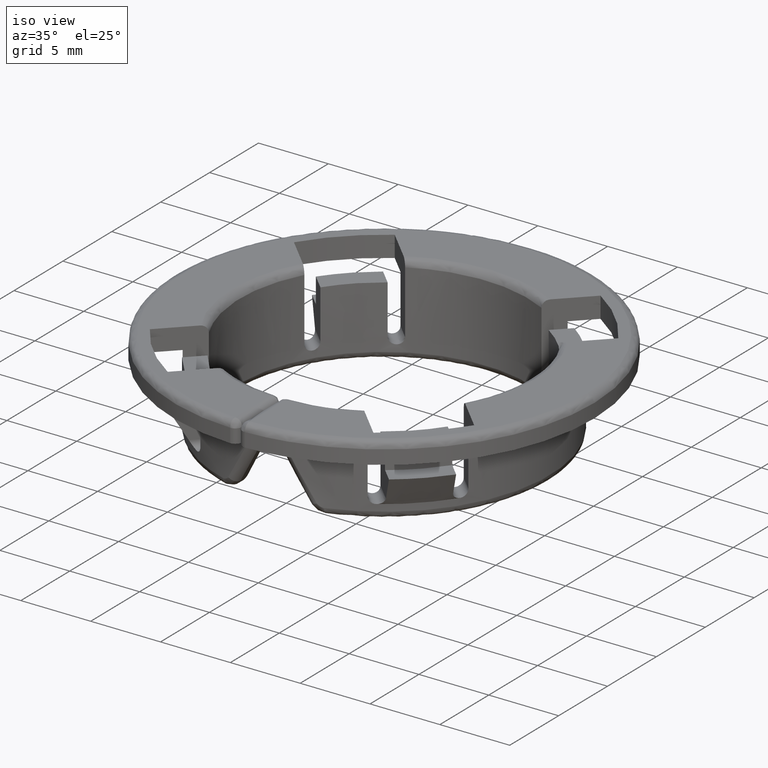
[diagram: clean part render]
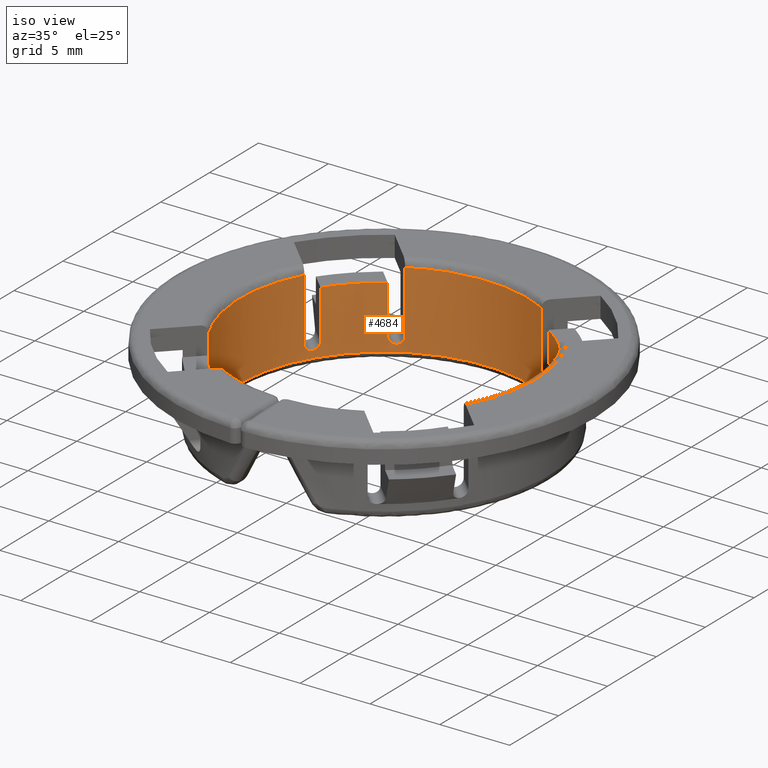
[diagram: same view with one face highlighted and labeled with its STEP entity id]
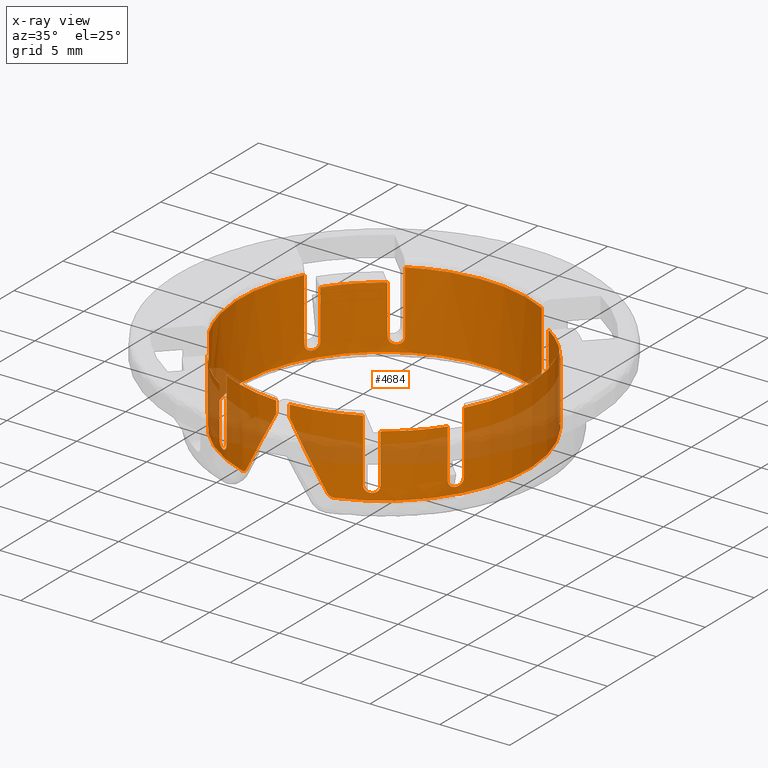
[diagram: x-ray of the same camera — body ghosted, the highlighted face saturated]
A machine part, iso view. The second image highlights one B-rep face of the part: STEP entity #4684.
The next image is the same camera in x-ray: the body ghosted, the highlighted face saturated — about 19% of this face is hidden behind the body in this view.
In plain terms, the highlighted face is a freeform B-spline surface patch.
Its self-contained STEP definition (entity closure, byte-faithful):
#64=CARTESIAN_POINT('',(4.883053290106590,-9.125693977225859,1.500000000000055));
#65=VERTEX_POINT('',#64);
#119=CARTESIAN_POINT('',(5.766402706444200,-8.594829831190110,1.499999999999946));
#120=VERTEX_POINT('',#119);
#126=CARTESIAN_POINT('',(4.883053290106590,-9.125693977225859,1.500000000000055));
#127=CARTESIAN_POINT('',(4.883053290106591,-9.125693977225859,1.466456825093460));
#128=CARTESIAN_POINT('',(4.886132504313243,-9.124048205405194,1.433514596777720));
#129=CARTESIAN_POINT('',(4.898151554858448,-9.117601540421788,1.368775764667828));
#130=CARTESIAN_POINT('',(4.907254160068183,-9.112712809909644,1.336631367448102));
#131=CARTESIAN_POINT('',(4.930741003449565,-9.100025895803759,1.275793097881955));
#132=CARTESIAN_POINT('',(4.945059169668516,-9.092263601023513,1.247003247082714));
#133=CARTESIAN_POINT('',(4.970297510748945,-9.078476444324007,1.206217292265463));
#134=CARTESIAN_POINT('',(4.979392597527713,-9.073492615548394,1.192965360570498));
#135=CARTESIAN_POINT('',(4.998498851073491,-9.062981193875556,1.167772523467935));
#136=CARTESIAN_POINT('',(5.008529282800129,-9.057443253071730,1.155786014511392));
#137=CARTESIAN_POINT('',(5.039997815844775,-9.039994328173640,1.121597442167305));
#138=CARTESIAN_POINT('',(5.062866936788113,-9.027218537981037,1.101100891460868));
#139=CARTESIAN_POINT('',(5.112011316941567,-8.999479787607287,1.065104796818212));
#140=CARTESIAN_POINT('',(5.137648066545639,-8.984877116942837,1.050051497744289));
#141=CARTESIAN_POINT('',(5.190914333071667,-8.954208666819989,1.025560140814321));
#142=CARTESIAN_POINT('',(5.218806389038011,-8.937988040079796,1.016078661369005));
#143=CARTESIAN_POINT('',(5.275206739815597,-8.904816909014896,1.003393578908698));
#144=CARTESIAN_POINT('',(5.303660318471935,-8.887902404440160,1.000129879449750));
#145=CARTESIAN_POINT('',(5.361075495140741,-8.853388699248921,0.999877648682865));
#146=CARTESIAN_POINT('',(5.389305944837537,-8.836228656173409,1.002899181831175));
#147=CARTESIAN_POINT('',(5.430829671541198,-8.810723746464657,1.011997007864005));
#148=CARTESIAN_POINT('',(5.444540864495107,-8.802257108824458,1.015795883286055));
#149=CARTESIAN_POINT('',(5.471699494651197,-8.785400393564411,1.024965005994182));
#150=CARTESIAN_POINT('',(5.485214027051084,-8.776967994495331,1.030371313974601));
#151=CARTESIAN_POINT('',(5.524597413138721,-8.752273065813341,1.048698132375599));
#152=CARTESIAN_POINT('',(5.549461865950282,-8.736518231888962,1.063719417366161));
#153=CARTESIAN_POINT('',(5.596464242695252,-8.706484123800959,1.099340603428289));
#154=CARTESIAN_POINT('',(5.618795123026382,-8.692077611748653,1.120215595332013));
#155=CARTESIAN_POINT('',(5.658900285941515,-8.666020966797751,1.166137584972987));
#156=CARTESIAN_POINT('',(5.676858454991598,-8.654255496527142,1.191241514199203));
#157=CARTESIAN_POINT('',(5.700631151171252,-8.638599105618292,1.232175407447735));
#158=CARTESIAN_POINT('',(5.708059785438370,-8.633690921725473,1.246456223580947));
#159=CARTESIAN_POINT('',(5.721549508430972,-8.624757194761882,1.275596531279998));
#160=CARTESIAN_POINT('',(5.727633532519601,-8.620716721925842,1.290476492087931));
#161=CARTESIAN_POINT('',(5.743951536812398,-8.609860130855582,1.336026774622397));
#162=CARTESIAN_POINT('',(5.752271685827570,-8.604296410234342,1.367598146180076));
#163=CARTESIAN_POINT('',(5.763575621780746,-8.596728582127028,1.433268035030917));
#164=CARTESIAN_POINT('',(5.766402706443721,-8.594829831190143,1.466463488594771));
#165=CARTESIAN_POINT('',(5.766402706444200,-8.594829831190110,1.499999999999946));
#166=B_SPLINE_CURVE_WITH_KNOTS('',3,(#126,#127,#128,#129,#130,#131,#132,#133,#134,#135,#136,#137,#138,#139,#140,#141,#142,#143,#144,#145,#146,#147,#148,#149,#150,#151,#152,#153,#154,#155,#156,#157,#158,#159,#160,#161,#162,#163,#164,#165),.UNSPECIFIED.,.F.,.U.,(4,2,2,2,2,2,2,2,2,2,2,2,2,2,2,2,2,2,2,4),(0.0,0.062500000000002,0.125000000000003,0.187500000000005,0.218750000000006,0.250000000000006,0.312500000000006,0.375000000000006,0.437500000000007,0.500000000000007,0.562500000000007,0.593750000000006,0.625000000000005,0.687500000000003,0.750000000000002,0.812500000000000,0.843750000000000,0.874999999999999,0.937500000000000,1.0),.UNSPECIFIED.);
#167=EDGE_CURVE('',#65,#120,#166,.T.);
#192=CARTESIAN_POINT('',(8.594829831190230,-5.766402706443970,1.499999999999946));
#193=VERTEX_POINT('',#192);
#245=CARTESIAN_POINT('',(9.125693977225859,-4.883053290106720,1.500000000000055));
#246=VERTEX_POINT('',#245);
#252=CARTESIAN_POINT('',(8.594829831190230,-5.766402706443970,1.499999999999946));
#253=CARTESIAN_POINT('',(8.594829831190001,-5.766402706444200,1.466461563871999));
#254=CARTESIAN_POINT('',(8.596727734932827,-5.763576725042938,1.433504727635055));
#255=CARTESIAN_POINT('',(8.604142959160903,-5.752501051920094,1.368705085261323));
#256=CARTESIAN_POINT('',(8.609758256425756,-5.744104346308679,1.336512552744379));
#257=CARTESIAN_POINT('',(8.624286691050246,-5.722267998437974,1.275440459893344));
#258=CARTESIAN_POINT('',(8.633148325303552,-5.708906046527832,1.246522052624599));
#259=CARTESIAN_POINT('',(8.653970897790524,-5.677292132255323,1.191892449707248));
#260=CARTESIAN_POINT('',(8.665974180733636,-5.658971706445651,1.166237169905556));
#261=CARTESIAN_POINT('',(8.691972797457444,-5.618957035229426,1.120383289036379));
#262=CARTESIAN_POINT('',(8.706078891270339,-5.597096309477162,1.099858515057701));
#263=CARTESIAN_POINT('',(8.736478383141666,-5.549526305864690,1.063729924931900));
#264=CARTESIAN_POINT('',(8.752302352226396,-5.524549787604725,1.048688197880573));
#265=CARTESIAN_POINT('',(8.784996210702253,-5.472411570638496,1.024401606198955));
#266=CARTESIAN_POINT('',(8.802033763162942,-5.444977179894101,1.015100810085251));
#267=CARTESIAN_POINT('',(8.836352177696107,-5.389105217858823,1.002851119575662));
#268=CARTESIAN_POINT('',(8.853595453070666,-5.360734013111934,0.999854423215790));
#269=CARTESIAN_POINT('',(8.888102069281656,-5.303325674706380,1.000156368141903));
#270=CARTESIAN_POINT('',(8.904941070354880,-5.274995480221750,1.003442645894904));
#271=CARTESIAN_POINT('',(8.937839289209046,-5.219059457711137,1.016020192203746));
#272=CARTESIAN_POINT('',(8.954046595872679,-5.191195128515154,1.025439404359235));
#273=CARTESIAN_POINT('',(8.984923430914352,-5.137568320128191,1.050079824965759));
#274=CARTESIAN_POINT('',(8.999484474277734,-5.112001409247668,1.065137748516824));
#275=CARTESIAN_POINT('',(9.026927880249451,-5.063383479027761,1.100697118691941));
#276=CARTESIAN_POINT('',(9.039922804332978,-5.040126362357014,1.121469063098240));
#277=CARTESIAN_POINT('',(9.063241311283143,-4.998073127743942,1.167134730903781));
#278=CARTESIAN_POINT('',(9.073663852394137,-4.979105536561574,1.192073093558374));
#279=CARTESIAN_POINT('',(9.092049899415910,-4.945452080143256,1.246280524891207));
#280=CARTESIAN_POINT('',(9.099987001366985,-4.930812665873445,1.275660026384982));
#281=CARTESIAN_POINT('',(9.112632240725478,-4.907403653285159,1.336192071227283));
#282=CARTESIAN_POINT('',(9.117463269828484,-4.898409111393684,1.367655032375390));
#283=CARTESIAN_POINT('',(9.124033364090316,-4.886160401606043,1.433103938330073));
#284=CARTESIAN_POINT('',(9.125693977226037,-4.883053290106721,1.466449628437052));
#285=CARTESIAN_POINT('',(9.125693977225859,-4.883053290106720,1.500000000000055));
#286=B_SPLINE_CURVE_WITH_KNOTS('',3,(#252,#253,#254,#255,#256,#257,#258,#259,#260,#261,#262,#263,#264,#265,#266,#267,#268,#269,#270,#271,#272,#273,#274,#275,#276,#277,#278,#279,#280,#281,#282,#283,#284,#285),.UNSPECIFIED.,.F.,.U.,(4,2,2,2,2,2,2,2,2,2,2,2,2,2,2,2,4),(0.0,0.062500000000000,0.125000000000000,0.187500000000000,0.250000000000000,0.312500000000000,0.375000000000000,0.437500000000000,0.500000000000000,0.562500000000000,0.625000000000000,0.687500000000000,0.750000000000000,0.812500000000000,0.875000000000000,0.937500000000000,1.0),.UNSPECIFIED.);
#287=EDGE_CURVE('',#193,#246,#286,.T.);
#312=CARTESIAN_POINT('',(9.125693977225890,4.883053290106949,1.500000000000055));
#313=VERTEX_POINT('',#312);
#367=CARTESIAN_POINT('',(8.594829831190118,5.766402706444190,1.499999999999946));
#368=VERTEX_POINT('',#367);
#374=CARTESIAN_POINT('',(9.125693977225890,4.883053290106949,1.500000000000055));
#375=CARTESIAN_POINT('',(9.125693977225891,4.883053290106950,1.466456825093476));
#376=CARTESIAN_POINT('',(9.124048205405329,4.886132504313387,1.433514596777711));
#377=CARTESIAN_POINT('',(9.117601540421937,4.898151554858584,1.368775764667850));
#378=CARTESIAN_POINT('',(9.112712809909780,4.907254160068336,1.336631367448066));
#379=CARTESIAN_POINT('',(9.100025895803897,4.930741003449714,1.275793097881947));
#380=CARTESIAN_POINT('',(9.092263601023662,4.945059169668658,1.247003247082718));
#381=CARTESIAN_POINT('',(9.078476444324155,4.970297510749078,1.206217292265483));
#382=CARTESIAN_POINT('',(9.073492615548524,4.979392597527870,1.192965360570475));
#383=CARTESIAN_POINT('',(9.062981193875690,4.998498851073641,1.167772523467921));
#384=CARTESIAN_POINT('',(9.057443253071869,5.008529282800276,1.155786014511383));
#385=CARTESIAN_POINT('',(9.039994328173783,5.039997815844917,1.121597442167308));
#386=CARTESIAN_POINT('',(9.027218537981167,5.062866936788272,1.101100891460853));
#387=CARTESIAN_POINT('',(8.999479787607420,5.112011316941715,1.065104796818208));
#388=CARTESIAN_POINT('',(8.984877116942974,5.137648066545784,1.050051497744287));
#389=CARTESIAN_POINT('',(8.954208666820136,5.190914333071802,1.025560140814325));
#390=CARTESIAN_POINT('',(8.937988040079940,5.218806389038154,1.016078661369005));
#391=CARTESIAN_POINT('',(8.904816909015040,5.275206739815736,1.003393578908699));
#392=CARTESIAN_POINT('',(8.887902404440306,5.303660318472073,1.000129879449750));
#393=CARTESIAN_POINT('',(8.853388699249059,5.361075495140875,0.999877648682864));
#394=CARTESIAN_POINT('',(8.836228656173550,5.389305944837673,1.002899181831173));
#395=CARTESIAN_POINT('',(8.810723746464802,5.430829671541336,1.011997007864004));
#396=CARTESIAN_POINT('',(8.802257108824604,5.444540864495245,1.015795883286053));
#397=CARTESIAN_POINT('',(8.785400393564553,5.471699494651334,1.024965005994180));
#398=CARTESIAN_POINT('',(8.776967994495477,5.485214027051221,1.030371313974598));
#399=CARTESIAN_POINT('',(8.752273065813492,5.524597413138861,1.048698132375596));
#400=CARTESIAN_POINT('',(8.736518231889107,5.549461865950421,1.063719417366159));
#401=CARTESIAN_POINT('',(8.706484123801102,5.596464242695389,1.099340603428285));
#402=CARTESIAN_POINT('',(8.692077611748795,5.618795123026520,1.120215595332010));
#403=CARTESIAN_POINT('',(8.666020966797895,5.658900285941656,1.166137584972984));
#404=CARTESIAN_POINT('',(8.654255496527284,5.676858454991739,1.191241514199199));
#405=CARTESIAN_POINT('',(8.638599105618436,5.700631151171392,1.232175407447731));
#406=CARTESIAN_POINT('',(8.633690921725613,5.708059785438509,1.246456223580941));
#407=CARTESIAN_POINT('',(8.624757194762024,5.721549508431111,1.275596531279992));
#408=CARTESIAN_POINT('',(8.620716721925984,5.727633532519740,1.290476492087925));
#409=CARTESIAN_POINT('',(8.609860130855726,5.743951536812538,1.336026774622391));
#410=CARTESIAN_POINT('',(8.604296410234483,5.752271685827711,1.367598146180071));
#411=CARTESIAN_POINT('',(8.596728582127172,5.763575621780888,1.433268035030910));
#412=CARTESIAN_POINT('',(8.594829831190280,5.766402706443859,1.466463488594771));
#413=CARTESIAN_POINT('',(8.594829831190118,5.766402706444190,1.499999999999946));
#414=B_SPLINE_CURVE_WITH_KNOTS('',3,(#374,#375,#376,#377,#378,#379,#380,#381,#382,#383,#384,#385,#386,#387,#388,#389,#390,#391,#392,#393,#394,#395,#396,#397,#398,#399,#400,#401,#402,#403,#404,#405,#406,#407,#408,#409,#410,#411,#412,#413),.UNSPECIFIED.,.F.,.U.,(4,2,2,2,2,2,2,2,2,2,2,2,2,2,2,2,2,2,2,4),(0.0,0.062500000000001,0.125000000000001,0.187500000000002,0.218750000000002,0.250000000000002,0.312500000000002,0.375000000000003,0.437500000000003,0.500000000000003,0.562500000000003,0.593750000000004,0.625000000000004,0.687500000000004,0.750000000000005,0.812500000000005,0.843750000000005,0.875000000000004,0.937500000000002,1.0),.UNSPECIFIED.);
#415=EDGE_CURVE('',#313,#368,#414,.T.);
#440=CARTESIAN_POINT('',(5.766402706443980,8.594829831190220,1.499999999999946));
#441=VERTEX_POINT('',#440);
#493=CARTESIAN_POINT('',(4.883053290106670,9.125693977226099,1.500000000000055));
#494=VERTEX_POINT('',#493);
#500=CARTESIAN_POINT('',(5.766402706443980,8.594829831190220,1.499999999999946));
#501=CARTESIAN_POINT('',(5.766402706444201,8.594829831190001,1.466461563871987));
#502=CARTESIAN_POINT('',(5.763576725042904,8.596727734933086,1.433504727635063));
#503=CARTESIAN_POINT('',(5.752501051920051,8.604142959161166,1.368705085261305));
#504=CARTESIAN_POINT('',(5.744104346308656,8.609758256426009,1.336512552744414));
#505=CARTESIAN_POINT('',(5.722267998437941,8.624286691050504,1.275440459893353));
#506=CARTESIAN_POINT('',(5.708906046527796,8.633148325303814,1.246522052624597));
#507=CARTESIAN_POINT('',(5.677292132255273,8.653970897790796,1.191892449707226));
#508=CARTESIAN_POINT('',(5.658971706445626,8.665974180733890,1.166237169905569));
#509=CARTESIAN_POINT('',(5.618957035229391,8.691972797457703,1.120383289036379));
#510=CARTESIAN_POINT('',(5.597096309477116,8.706078891270604,1.099858515057695));
#511=CARTESIAN_POINT('',(5.549526305864628,8.736478383141940,1.063729924931886));
#512=CARTESIAN_POINT('',(5.524549787604691,8.752302352226646,1.048688197880576));
#513=CARTESIAN_POINT('',(5.472411570638452,8.784996210702513,1.024401606198952));
#514=CARTESIAN_POINT('',(5.444977179894062,8.802033763163196,1.015100810085251));
#515=CARTESIAN_POINT('',(5.389105217858784,8.836352177696361,1.002851119575663));
#516=CARTESIAN_POINT('',(5.360734013111889,8.853595453070918,0.999854423215790));
#517=CARTESIAN_POINT('',(5.303325674706333,8.888102069281908,1.000156368141904));
#518=CARTESIAN_POINT('',(5.274995480221704,8.904941070355134,1.003442645894904));
#519=CARTESIAN_POINT('',(5.219059457711092,8.937839289209302,1.016020192203746));
#520=CARTESIAN_POINT('',(5.191195128515107,8.954046595872928,1.025439404359235));
#521=CARTESIAN_POINT('',(5.137568320128145,8.984923430914604,1.050079824965760));
#522=CARTESIAN_POINT('',(5.112001409247622,8.999484474277985,1.065137748516825));
#523=CARTESIAN_POINT('',(5.063383479027715,9.026927880249701,1.100697118691942));
#524=CARTESIAN_POINT('',(5.040126362356967,9.039922804333225,1.121469063098239));
#525=CARTESIAN_POINT('',(4.998073127743895,9.063241311283392,1.167134730903781));
#526=CARTESIAN_POINT('',(4.979105536561526,9.073663852394386,1.192073093558374));
#527=CARTESIAN_POINT('',(4.945452080143208,9.092049899416157,1.246280524891207));
#528=CARTESIAN_POINT('',(4.930812665873396,9.099987001367230,1.275660026384982));
#529=CARTESIAN_POINT('',(4.907403653285110,9.112632240725727,1.336192071227282));
#530=CARTESIAN_POINT('',(4.898409111393633,9.117463269828726,1.367655032375390));
#531=CARTESIAN_POINT('',(4.886160401605994,9.124033364090558,1.433103938330073));
#532=CARTESIAN_POINT('',(4.883053290106681,9.125693977226280,1.466449628437053));
#533=CARTESIAN_POINT('',(4.883053290106670,9.125693977226099,1.500000000000055));
#534=B_SPLINE_CURVE_WITH_KNOTS('',3,(#500,#501,#502,#503,#504,#505,#506,#507,#508,#509,#510,#511,#512,#513,#514,#515,#516,#517,#518,#519,#520,#521,#522,#523,#524,#525,#526,#527,#528,#529,#530,#531,#532,#533),.UNSPECIFIED.,.F.,.U.,(4,2,2,2,2,2,2,2,2,2,2,2,2,2,2,2,4),(0.0,0.062500000000000,0.125000000000000,0.187500000000000,0.250000000000000,0.312500000000000,0.375000000000000,0.437500000000000,0.500000000000000,0.562500000000000,0.625000000000000,0.687500000000000,0.750000000000000,0.812500000000000,0.875000000000000,0.937500000000000,1.0),.UNSPECIFIED.);
#535=EDGE_CURVE('',#441,#494,#534,.T.);
#558=CARTESIAN_POINT('',(-5.766402706444181,8.594829831190110,1.499999999999946));
#559=VERTEX_POINT('',#558);
#567=CARTESIAN_POINT('',(-4.883053290106879,9.125693977225991,1.500000000000055));
#568=VERTEX_POINT('',#567);
#569=CARTESIAN_POINT('',(-4.883053290106879,9.125693977225991,1.500000000000055));
#570=CARTESIAN_POINT('',(-4.883053290106881,9.125693977226003,1.466456825093449));
#571=CARTESIAN_POINT('',(-4.886132504313699,9.124048205405236,1.433514596777731));
#572=CARTESIAN_POINT('',(-4.898151554858907,9.117601540421831,1.368775764667818));
#573=CARTESIAN_POINT('',(-4.907254160068625,9.112712809909692,1.336631367448140));
#574=CARTESIAN_POINT('',(-4.930741003450011,9.100025895803796,1.275793097881973));
#575=CARTESIAN_POINT('',(-4.945059169668967,9.092263601023552,1.247003247082722));
#576=CARTESIAN_POINT('',(-4.970297510749403,9.078476444324036,1.206217292265459));
#577=CARTESIAN_POINT('',(-4.979392597528143,9.073492615548441,1.192965360570530));
#578=CARTESIAN_POINT('',(-4.998498851073921,9.062981193875601,1.167772523467960));
#579=CARTESIAN_POINT('',(-5.008529282800563,9.057443253071776,1.155786014511414));
#580=CARTESIAN_POINT('',(-5.039997815845215,9.039994328173680,1.121597442167317));
#581=CARTESIAN_POINT('',(-5.062866936788532,9.027218537981083,1.101100891460893));
#582=CARTESIAN_POINT('',(-5.112011316941990,8.999479787607328,1.065104796818229));
#583=CARTESIAN_POINT('',(-5.137648066546063,8.984877116942878,1.050051497744302));
#584=CARTESIAN_POINT('',(-5.190914333072096,8.954208666820026,1.025560140814328));
#585=CARTESIAN_POINT('',(-5.218806389038431,8.937988040079835,1.016078661369013));
#586=CARTESIAN_POINT('',(-5.275206739816015,8.904816909014931,1.003393578908701));
#587=CARTESIAN_POINT('',(-5.303660318472351,8.887902404440194,1.000129879449752));
#588=CARTESIAN_POINT('',(-5.361075495141153,8.853388699248955,0.999877648682863));
#589=CARTESIAN_POINT('',(-5.389305944837951,8.836228656173439,1.002899181831171));
#590=CARTESIAN_POINT('',(-5.430829671541610,8.810723746464690,1.011997007863999));
#591=CARTESIAN_POINT('',(-5.444540864495518,8.802257108824488,1.015795883286046));
#592=CARTESIAN_POINT('',(-5.471699494651604,8.785400393564444,1.024965005994171));
#593=CARTESIAN_POINT('',(-5.485214027051515,8.776967994495340,1.030371313974599));
#594=CARTESIAN_POINT('',(-5.524597413139142,8.752273065813363,1.048698132375593));
#595=CARTESIAN_POINT('',(-5.549461865950698,8.736518231888988,1.063719417366150));
#596=CARTESIAN_POINT('',(-5.596464242695653,8.706484123800983,1.099340603428264));
#597=CARTESIAN_POINT('',(-5.618795123026819,8.692077611748655,1.120215595332021));
#598=CARTESIAN_POINT('',(-5.658900285941932,8.666020966797763,1.166137584972975));
#599=CARTESIAN_POINT('',(-5.676858454992010,8.654255496527156,1.191241514199180));
#600=CARTESIAN_POINT('',(-5.700631151171653,8.638599105618310,1.232175407447691));
#601=CARTESIAN_POINT('',(-5.708059785438807,8.633690921725465,1.246456223580972));
#602=CARTESIAN_POINT('',(-5.721549508431399,8.624757194761880,1.275596531280008));
#603=CARTESIAN_POINT('',(-5.727633532520025,8.620716721925843,1.290476492087933));
#604=CARTESIAN_POINT('',(-5.743951536812815,8.609860130855591,1.336026774622373));
#605=CARTESIAN_POINT('',(-5.752271685827981,8.604296410234351,1.367598146180035));
#606=CARTESIAN_POINT('',(-5.763575621781160,8.596728582127041,1.433268035030836));
#607=CARTESIAN_POINT('',(-5.766402706443889,8.594829831190310,1.466463488594790));
#608=CARTESIAN_POINT('',(-5.766402706444181,8.594829831190110,1.499999999999946));
#609=B_SPLINE_CURVE_WITH_KNOTS('',3,(#569,#570,#571,#572,#573,#574,#575,#576,#577,#578,#579,#580,#581,#582,#583,#584,#585,#586,#587,#588,#589,#590,#591,#592,#593,#594,#595,#596,#597,#598,#599,#600,#601,#602,#603,#604,#605,#606,#607,#608),.UNSPECIFIED.,.F.,.U.,(4,2,2,2,2,2,2,2,2,2,2,2,2,2,2,2,2,2,2,4),(0.0,0.062500000000003,0.125000000000006,0.187500000000009,0.218750000000010,0.250000000000011,0.312500000000012,0.375000000000013,0.437500000000014,0.500000000000015,0.562500000000015,0.593750000000015,0.625000000000015,0.687500000000013,0.750000000000010,0.812500000000008,0.843750000000007,0.875000000000006,0.937500000000003,1.0),.UNSPECIFIED.);
#610=EDGE_CURVE('',#568,#559,#609,.T.);
#686=CARTESIAN_POINT('',(-9.125693977226019,4.883053290106700,1.500000000000055));
#687=VERTEX_POINT('',#686);
#695=CARTESIAN_POINT('',(-8.594829831190209,5.766402706443970,1.499999999999946));
#696=VERTEX_POINT('',#695);
#697=CARTESIAN_POINT('',(-8.594829831190209,5.766402706443970,1.499999999999946));
#698=CARTESIAN_POINT('',(-8.594829831189992,5.766402706444191,1.466461563872012));
#699=CARTESIAN_POINT('',(-8.596727734932845,5.763576725043194,1.433504727635048));
#700=CARTESIAN_POINT('',(-8.604142959160921,5.752501051920354,1.368705085261339));
#701=CARTESIAN_POINT('',(-8.609758256425778,5.744104346308928,1.336512552744353));
#702=CARTESIAN_POINT('',(-8.624286691050267,5.722267998438228,1.275440459893336));
#703=CARTESIAN_POINT('',(-8.633148325303571,5.708906046528090,1.246522052624599));
#704=CARTESIAN_POINT('',(-8.653970897790538,5.677292132255592,1.191892449707262));
#705=CARTESIAN_POINT('',(-8.665974180733661,5.658971706445897,1.166237169905541));
#706=CARTESIAN_POINT('',(-8.691972797457462,5.618957035229681,1.120383289036376));
#707=CARTESIAN_POINT('',(-8.706078891270357,5.597096309477421,1.099858515057702));
#708=CARTESIAN_POINT('',(-8.736478383141678,5.549526305864961,1.063729924931909));
#709=CARTESIAN_POINT('',(-8.752302352226421,5.524549787604972,1.048688197880566));
#710=CARTESIAN_POINT('',(-8.784996210702275,5.472411570638748,1.024401606198952));
#711=CARTESIAN_POINT('',(-8.802033763162966,5.444977179894347,1.015100810085246));
#712=CARTESIAN_POINT('',(-8.836352177696130,5.389105217859069,1.002851119575661));
#713=CARTESIAN_POINT('',(-8.853595453070687,5.360734013112178,0.999854423215790));
#714=CARTESIAN_POINT('',(-8.888102069281679,5.303325674706624,1.000156368141905));
#715=CARTESIAN_POINT('',(-8.904941070354905,5.274995480221993,1.003442645894906));
#716=CARTESIAN_POINT('',(-8.937839289209075,5.219059457711376,1.016020192203752));
#717=CARTESIAN_POINT('',(-8.954046595872686,5.191195128515422,1.025439404359230));
#718=CARTESIAN_POINT('',(-8.984923430914369,5.137568320128445,1.050079824965762));
#719=CARTESIAN_POINT('',(-8.999484474277757,5.112001409247912,1.065137748516832));
#720=CARTESIAN_POINT('',(-9.026927880249479,5.063383479027996,1.100697118691963));
#721=CARTESIAN_POINT('',(-9.039922804332987,5.040126362357287,1.121469063098226));
#722=CARTESIAN_POINT('',(-9.063241311283161,4.998073127744195,1.167134730903789));
#723=CARTESIAN_POINT('',(-9.073663852394164,4.979105536561819,1.192073093558394));
#724=CARTESIAN_POINT('',(-9.092049899415935,4.945452080143491,1.246280524891255));
#725=CARTESIAN_POINT('',(-9.099987001366992,4.930812665873712,1.275660026384965));
#726=CARTESIAN_POINT('',(-9.112632240725496,4.907403653285414,1.336192071227298));
#727=CARTESIAN_POINT('',(-9.117463269828502,4.898409111393936,1.367655032375425));
#728=CARTESIAN_POINT('',(-9.124033364090332,4.886160401606292,1.433103938330147));
#729=CARTESIAN_POINT('',(-9.125693977226202,4.883053290106710,1.466449628437033));
#730=CARTESIAN_POINT('',(-9.125693977226019,4.883053290106700,1.500000000000055));
#731=B_SPLINE_CURVE_WITH_KNOTS('',3,(#697,#698,#699,#700,#701,#702,#703,#704,#705,#706,#707,#708,#709,#710,#711,#712,#713,#714,#715,#716,#717,#718,#719,#720,#721,#722,#723,#724,#725,#726,#727,#728,#729,#730),.UNSPECIFIED.,.F.,.U.,(4,2,2,2,2,2,2,2,2,2,2,2,2,2,2,2,4),(0.0,0.062500000000000,0.125000000000000,0.187500000000000,0.250000000000000,0.312500000000000,0.375000000000000,0.437500000000000,0.500000000000000,0.562500000000000,0.625000000000000,0.687500000000000,0.750000000000000,0.812500000000000,0.875000000000000,0.937500000000000,1.0),.UNSPECIFIED.);
#732=EDGE_CURVE('',#696,#687,#731,.T.);
#808=CARTESIAN_POINT('',(-9.125693977225998,-4.883053290106460,1.500000000000055));
#809=VERTEX_POINT('',#808);
#863=CARTESIAN_POINT('',(-8.594829831190099,-5.766402706444190,1.499999999999946));
#864=VERTEX_POINT('',#863);
#870=CARTESIAN_POINT('',(-9.125693977225998,-4.883053290106460,1.500000000000055));
#871=CARTESIAN_POINT('',(-9.125693977225998,-4.883053290106461,1.466456825093448));
#872=CARTESIAN_POINT('',(-9.124048205405238,-4.886132504313284,1.433514596777729));
#873=CARTESIAN_POINT('',(-9.117601540421832,-4.898151554858492,1.368775764667814));
#874=CARTESIAN_POINT('',(-9.112712809909695,-4.907254160068211,1.336631367448136));
#875=CARTESIAN_POINT('',(-9.100025895803801,-4.930741003449602,1.275793097881967));
#876=CARTESIAN_POINT('',(-9.092263601023557,-4.945059169668558,1.247003247082716));
#877=CARTESIAN_POINT('',(-9.078476444324044,-4.970297510748996,1.206217292265451));
#878=CARTESIAN_POINT('',(-9.073492615548446,-4.979392597527734,1.192965360570524));
#879=CARTESIAN_POINT('',(-9.062981193875606,-4.998498851073515,1.167772523467953));
#880=CARTESIAN_POINT('',(-9.057443253071783,-5.008529282800156,1.155786014511407));
#881=CARTESIAN_POINT('',(-9.039994328173680,-5.039997815844812,1.121597442167309));
#882=CARTESIAN_POINT('',(-9.027218537981087,-5.062866936788129,1.101100891460886));
#883=CARTESIAN_POINT('',(-8.999479787607331,-5.112011316941590,1.065104796818223));
#884=CARTESIAN_POINT('',(-8.984877116942878,-5.137648066545665,1.050051497744296));
#885=CARTESIAN_POINT('',(-8.954208666820032,-5.190914333071700,1.025560140814323));
#886=CARTESIAN_POINT('',(-8.937988040079842,-5.218806389038035,1.016078661369009));
#887=CARTESIAN_POINT('',(-8.904816909014938,-5.275206739815624,1.003393578908699));
#888=CARTESIAN_POINT('',(-8.887902404440199,-5.303660318471962,1.000129879449750));
#889=CARTESIAN_POINT('',(-8.853388699248956,-5.361075495140766,0.999877648682863));
#890=CARTESIAN_POINT('',(-8.836228656173446,-5.389305944837563,1.002899181831173));
#891=CARTESIAN_POINT('',(-8.810723746464696,-5.430829671541224,1.011997007864004));
#892=CARTESIAN_POINT('',(-8.802257108824493,-5.444540864495134,1.015795883286053));
#893=CARTESIAN_POINT('',(-8.785400393564446,-5.471699494651224,1.024965005994180));
#894=CARTESIAN_POINT('',(-8.776967994495367,-5.485214027051111,1.030371313974597));
#895=CARTESIAN_POINT('',(-8.752273065813382,-5.524597413138750,1.048698132375596));
#896=CARTESIAN_POINT('',(-8.736518231888997,-5.549461865950309,1.063719417366159));
#897=CARTESIAN_POINT('',(-8.706484123800989,-5.596464242695279,1.099340603428286));
#898=CARTESIAN_POINT('',(-8.692077611748685,-5.618795123026409,1.120215595332011));
#899=CARTESIAN_POINT('',(-8.666020966797783,-5.658900285941541,1.166137584972985));
#900=CARTESIAN_POINT('',(-8.654255496527171,-5.676858454991626,1.191241514199200));
#901=CARTESIAN_POINT('',(-8.638599105618319,-5.700631151171279,1.232175407447732));
#902=CARTESIAN_POINT('',(-8.633690921725499,-5.708059785438397,1.246456223580943));
#903=CARTESIAN_POINT('',(-8.624757194761910,-5.721549508431001,1.275596531279995));
#904=CARTESIAN_POINT('',(-8.620716721925868,-5.727633532519627,1.290476492087927));
#905=CARTESIAN_POINT('',(-8.609860130855616,-5.743951536812427,1.336026774622394));
#906=CARTESIAN_POINT('',(-8.604296410234372,-5.752271685827599,1.367598146180075));
#907=CARTESIAN_POINT('',(-8.596728582127058,-5.763575621780774,1.433268035030915));
#908=CARTESIAN_POINT('',(-8.594829831190170,-5.766402706443750,1.466463488594770));
#909=CARTESIAN_POINT('',(-8.594829831190099,-5.766402706444190,1.499999999999946));
#910=B_SPLINE_CURVE_WITH_KNOTS('',3,(#870,#871,#872,#873,#874,#875,#876,#877,#878,#879,#880,#881,#882,#883,#884,#885,#886,#887,#888,#889,#890,#891,#892,#893,#894,#895,#896,#897,#898,#899,#900,#901,#902,#903,#904,#905,#906,#907,#908,#909),.UNSPECIFIED.,.F.,.U.,(4,2,2,2,2,2,2,2,2,2,2,2,2,2,2,2,2,2,2,4),(0.0,0.062500000000001,0.125000000000003,0.187500000000004,0.218750000000005,0.250000000000005,0.312500000000005,0.375000000000005,0.437500000000005,0.500000000000005,0.562500000000005,0.593750000000005,0.625000000000004,0.687500000000004,0.750000000000004,0.812500000000005,0.843750000000004,0.875000000000003,0.937500000000002,1.0),.UNSPECIFIED.);
#911=EDGE_CURVE('',#809,#864,#910,.T.);
#936=CARTESIAN_POINT('',(-5.766402706443961,-8.594829831190220,1.499999999999946));
#937=VERTEX_POINT('',#936);
#989=CARTESIAN_POINT('',(-4.883053290106810,-9.125693977225749,1.500000000000055));
#990=VERTEX_POINT('',#989);
#996=CARTESIAN_POINT('',(-5.766402706443961,-8.594829831190220,1.499999999999946));
#997=CARTESIAN_POINT('',(-5.766402706444191,-8.594829831189990,1.466461563872007));
#998=CARTESIAN_POINT('',(-5.763576725043015,-8.596727734932726,1.433504727635051));
#999=CARTESIAN_POINT('',(-5.752501051920171,-8.604142959160804,1.368705085261336));
#1000=CARTESIAN_POINT('',(-5.744104346308750,-8.609758256425659,1.336512552744362));
#1001=CARTESIAN_POINT('',(-5.722267998438047,-8.624286691050152,1.275440459893341));
#1002=CARTESIAN_POINT('',(-5.708906046527910,-8.633148325303450,1.246522052624602));
#1003=CARTESIAN_POINT('',(-5.677292132255411,-8.653970897790421,1.191892449707263));
#1004=CARTESIAN_POINT('',(-5.658971706445721,-8.665974180733542,1.166237169905549));
#1005=CARTESIAN_POINT('',(-5.618957035229506,-8.691972797457343,1.120383289036381));
#1006=CARTESIAN_POINT('',(-5.597096309477244,-8.706078891270236,1.099858515057705));
#1007=CARTESIAN_POINT('',(-5.549526305864781,-8.736478383141558,1.063729924931910));
#1008=CARTESIAN_POINT('',(-5.524549787604802,-8.752302352226296,1.048688197880572));
#1009=CARTESIAN_POINT('',(-5.472411570638577,-8.784996210702150,1.024401606198956));
#1010=CARTESIAN_POINT('',(-5.444977179894178,-8.802033763162839,1.015100810085251));
#1011=CARTESIAN_POINT('',(-5.389105217858903,-8.836352177696000,1.002851119575663));
#1012=CARTESIAN_POINT('',(-5.360734013112012,-8.853595453070557,0.999854423215790));
#1013=CARTESIAN_POINT('',(-5.303325674706458,-8.888102069281549,1.000156368141904));
#1014=CARTESIAN_POINT('',(-5.274995480221830,-8.904941070354775,1.003442645894904));
#1015=CARTESIAN_POINT('',(-5.219059457711217,-8.937839289208947,1.016020192203746));
#1016=CARTESIAN_POINT('',(-5.191195128515233,-8.954046595872574,1.025439404359234));
#1017=CARTESIAN_POINT('',(-5.137568320128271,-8.984923430914245,1.050079824965759));
#1018=CARTESIAN_POINT('',(-5.112001409247748,-8.999484474277629,1.065137748516824));
#1019=CARTESIAN_POINT('',(-5.063383479027843,-9.026927880249344,1.100697118691941));
#1020=CARTESIAN_POINT('',(-5.040126362357095,-9.039922804332869,1.121469063098240));
#1021=CARTESIAN_POINT('',(-4.998073127744021,-9.063241311283033,1.167134730903782));
#1022=CARTESIAN_POINT('',(-4.979105536561653,-9.073663852394027,1.192073093558374));
#1023=CARTESIAN_POINT('',(-4.945452080143340,-9.092049899415800,1.246280524891207));
#1024=CARTESIAN_POINT('',(-4.930812665873527,-9.099987001366877,1.275660026384983));
#1025=CARTESIAN_POINT('',(-4.907403653285241,-9.112632240725372,1.336192071227283));
#1026=CARTESIAN_POINT('',(-4.898409111393764,-9.117463269828372,1.367655032375390));
#1027=CARTESIAN_POINT('',(-4.886160401606124,-9.124033364090206,1.433103938330072));
#1028=CARTESIAN_POINT('',(-4.883053290106812,-9.125693977225920,1.466449628437053));
#1029=CARTESIAN_POINT('',(-4.883053290106810,-9.125693977225749,1.500000000000055));
#1030=B_SPLINE_CURVE_WITH_KNOTS('',3,(#996,#997,#998,#999,#1000,#1001,#1002,#1003,#1004,#1005,#1006,#1007,#1008,#1009,#1010,#1011,#1012,#1013,#1014,#1015,#1016,#1017,#1018,#1019,#1020,#1021,#1022,#1023,#1024,#1025,#1026,#1027,#1028,#1029),.UNSPECIFIED.,.F.,.U.,(4,2,2,2,2,2,2,2,2,2,2,2,2,2,2,2,4),(0.0,0.062500000000000,0.125000000000000,0.187500000000000,0.250000000000000,0.312500000000000,0.375000000000000,0.437500000000000,0.500000000000000,0.562500000000000,0.625000000000000,0.687500000000000,0.750000000000000,0.812500000000000,0.875000000000000,0.937500000000000,1.0),.UNSPECIFIED.);
#1031=EDGE_CURVE('',#937,#990,#1030,.T.);
#1041=CARTESIAN_POINT('',(-9.125693977226019,4.883053290106700,5.999999999999890));
#1042=VERTEX_POINT('',#1041);
#1043=CARTESIAN_POINT('',(-9.125693977226019,4.883053290106700,5.999999999999890));
#1044=CARTESIAN_POINT('',(-9.125693977226019,4.883053290106700,1.500000000000055));
#1045=QUASI_UNIFORM_CURVE('',1,(#1043,#1044),.UNSPECIFIED.,.F.,.U.);
#1046=EDGE_CURVE('',#1042,#687,#1045,.T.);
#1169=CARTESIAN_POINT('',(-4.883053290106879,9.125693977225991,5.999999999999890));
#1170=VERTEX_POINT('',#1169);
#1171=CARTESIAN_POINT('',(-4.883053290106879,9.125693977225991,5.999999999999890));
#1172=CARTESIAN_POINT('',(-4.883053290106879,9.125693977225991,1.500000000000055));
#1173=QUASI_UNIFORM_CURVE('',1,(#1171,#1172),.UNSPECIFIED.,.F.,.U.);
#1174=EDGE_CURVE('',#1170,#568,#1173,.T.);
#1224=CARTESIAN_POINT('',(-5.766402706444181,8.594829831190110,4.999999999999890));
#1225=VERTEX_POINT('',#1224);
#1246=CARTESIAN_POINT('',(-8.594829831190209,5.766402706443970,4.999999999999890));
#1247=VERTEX_POINT('',#1246);
#1253=CARTESIAN_POINT('',(-5.766402706444184,8.594829831190122,4.999999999999890));
#1254=CARTESIAN_POINT('',(-7.459143894459192,7.459143894459034,4.999999999999890));
#1255=CARTESIAN_POINT('',(-8.594829831190213,5.766402706443980,4.999999999999890));
#1263=(BOUNDED_CURVE()B_SPLINE_CURVE(2,(#1253,#1254,#1255),.UNSPECIFIED.,.F.,.U.)CURVE()GEOMETRIC_REPRESENTATION_ITEM()QUASI_UNIFORM_CURVE()RATIONAL_B_SPLINE_CURVE((1.0,0.981152165561156,1.0))REPRESENTATION_ITEM(''));
#1264=EDGE_CURVE('',#1225,#1247,#1263,.T.);
#1282=CARTESIAN_POINT('',(-9.125693977225998,-4.883053290106460,5.999999999999890));
#1283=VERTEX_POINT('',#1282);
#1284=CARTESIAN_POINT('',(-9.125693977225998,-4.883053290106460,5.999999999999890));
#1285=CARTESIAN_POINT('',(-9.125693977225998,-4.883053290106460,1.500000000000055));
#1286=QUASI_UNIFORM_CURVE('',1,(#1284,#1285),.UNSPECIFIED.,.F.,.U.);
#1287=EDGE_CURVE('',#1283,#809,#1286,.T.);
#1394=CARTESIAN_POINT('',(-4.883053290106810,-9.125693977225749,5.999999999999890));
#1395=VERTEX_POINT('',#1394);
#1396=CARTESIAN_POINT('',(-4.883053290106810,-9.125693977225749,5.999999999999890));
#1397=CARTESIAN_POINT('',(-4.883053290106810,-9.125693977225749,1.500000000000055));
#1398=QUASI_UNIFORM_CURVE('',1,(#1396,#1397),.UNSPECIFIED.,.F.,.U.);
#1399=EDGE_CURVE('',#1395,#990,#1398,.T.);
#1457=CARTESIAN_POINT('',(-8.594829831190099,-5.766402706444190,4.999999999999890));
#1458=VERTEX_POINT('',#1457);
#1479=CARTESIAN_POINT('',(-5.766402706443961,-8.594829831190220,4.999999999999890));
#1480=VERTEX_POINT('',#1479);
#1486=CARTESIAN_POINT('',(-8.594829831190099,-5.766402706444190,4.999999999999890));
#1487=CARTESIAN_POINT('',(-7.459143894458873,-7.459143894459061,4.999999999999890));
#1488=CARTESIAN_POINT('',(-5.766402706443961,-8.594829831190220,4.999999999999890));
#1496=(BOUNDED_CURVE()B_SPLINE_CURVE(2,(#1486,#1487,#1488),.UNSPECIFIED.,.F.,.U.)CURVE()GEOMETRIC_REPRESENTATION_ITEM()QUASI_UNIFORM_CURVE()RATIONAL_B_SPLINE_CURVE((1.0,0.981152165561157,1.0))REPRESENTATION_ITEM(''));
#1497=EDGE_CURVE('',#1458,#1480,#1496,.T.);
#1515=CARTESIAN_POINT('',(4.883053290106590,-9.125693977225859,5.999999999999890));
#1516=VERTEX_POINT('',#1515);
#1517=CARTESIAN_POINT('',(4.883053290106590,-9.125693977225859,5.999999999999890));
#1518=CARTESIAN_POINT('',(4.883053290106590,-9.125693977225859,1.500000000000055));
#1519=QUASI_UNIFORM_CURVE('',1,(#1517,#1518),.UNSPECIFIED.,.F.,.U.);
#1520=EDGE_CURVE('',#1516,#65,#1519,.T.);
#1627=CARTESIAN_POINT('',(9.125693977225859,-4.883053290106720,5.999999999999890));
#1628=VERTEX_POINT('',#1627);
#1629=CARTESIAN_POINT('',(9.125693977225859,-4.883053290106720,5.999999999999890));
#1630=CARTESIAN_POINT('',(9.125693977225859,-4.883053290106720,1.500000000000055));
#1631=QUASI_UNIFORM_CURVE('',1,(#1629,#1630),.UNSPECIFIED.,.F.,.U.);
#1632=EDGE_CURVE('',#1628,#246,#1631,.T.);
#1690=CARTESIAN_POINT('',(5.766402706444200,-8.594829831190110,4.999999999999890));
#1691=VERTEX_POINT('',#1690);
#1712=CARTESIAN_POINT('',(8.594829831190230,-5.766402706443970,4.999999999999890));
#1713=VERTEX_POINT('',#1712);
#1719=CARTESIAN_POINT('',(5.766402706444200,-8.594829831190110,4.999999999999890));
#1720=CARTESIAN_POINT('',(7.459143894459060,-7.459143894458872,4.999999999999890));
#1721=CARTESIAN_POINT('',(8.594829831190230,-5.766402706443970,4.999999999999890));
#1729=(BOUNDED_CURVE()B_SPLINE_CURVE(2,(#1719,#1720,#1721),.UNSPECIFIED.,.F.,.U.)CURVE()GEOMETRIC_REPRESENTATION_ITEM()QUASI_UNIFORM_CURVE()RATIONAL_B_SPLINE_CURVE((1.0,0.981152165561157,1.0))REPRESENTATION_ITEM(''));
#1730=EDGE_CURVE('',#1691,#1713,#1729,.T.);
#1748=CARTESIAN_POINT('',(9.125693977225890,4.883053290106949,5.999999999999890));
#1749=VERTEX_POINT('',#1748);
#1750=CARTESIAN_POINT('',(9.125693977225890,4.883053290106949,5.999999999999890));
#1751=CARTESIAN_POINT('',(9.125693977225890,4.883053290106949,1.500000000000055));
#1752=QUASI_UNIFORM_CURVE('',1,(#1750,#1751),.UNSPECIFIED.,.F.,.U.);
#1753=EDGE_CURVE('',#1749,#313,#1752,.T.);
#1860=CARTESIAN_POINT('',(4.883053290106670,9.125693977226099,5.999999999999890));
#1861=VERTEX_POINT('',#1860);
#1862=CARTESIAN_POINT('',(4.883053290106670,9.125693977226099,5.999999999999890));
#1863=CARTESIAN_POINT('',(4.883053290106670,9.125693977226099,1.500000000000055));
#1864=QUASI_UNIFORM_CURVE('',1,(#1862,#1863),.UNSPECIFIED.,.F.,.U.);
#1865=EDGE_CURVE('',#1861,#494,#1864,.T.);
#1923=CARTESIAN_POINT('',(8.594829831190118,5.766402706444190,4.999999999999890));
#1924=VERTEX_POINT('',#1923);
#1945=CARTESIAN_POINT('',(5.766402706443980,8.594829831190220,4.999999999999890));
#1946=VERTEX_POINT('',#1945);
#1952=CARTESIAN_POINT('',(8.594829831190118,5.766402706444190,4.999999999999890));
#1953=CARTESIAN_POINT('',(7.459143894459028,7.459143894459201,4.999999999999890));
#1954=CARTESIAN_POINT('',(5.766402706443980,8.594829831190220,4.999999999999890));
#1962=(BOUNDED_CURVE()B_SPLINE_CURVE(2,(#1952,#1953,#1954),.UNSPECIFIED.,.F.,.U.)CURVE()GEOMETRIC_REPRESENTATION_ITEM()QUASI_UNIFORM_CURVE()RATIONAL_B_SPLINE_CURVE((1.0,0.981152165561156,1.0))REPRESENTATION_ITEM(''));
#1963=EDGE_CURVE('',#1924,#1946,#1962,.T.);
#1973=CARTESIAN_POINT('',(5.766402706444200,-8.594829831190110,1.499999999999946));
#1974=CARTESIAN_POINT('',(5.766402706444200,-8.594829831190110,4.999999999999890));
#1975=QUASI_UNIFORM_CURVE('',1,(#1973,#1974),.UNSPECIFIED.,.F.,.U.);
#1976=EDGE_CURVE('',#120,#1691,#1975,.T.);
#2019=CARTESIAN_POINT('',(-5.766402706443961,-8.594829831190220,1.499999999999946));
#2020=CARTESIAN_POINT('',(-5.766402706443961,-8.594829831190220,4.999999999999890));
#2021=QUASI_UNIFORM_CURVE('',1,(#2019,#2020),.UNSPECIFIED.,.F.,.U.);
#2022=EDGE_CURVE('',#937,#1480,#2021,.T.);
#2045=CARTESIAN_POINT('',(-8.594829831190099,-5.766402706444190,1.499999999999946));
#2046=CARTESIAN_POINT('',(-8.594829831190099,-5.766402706444190,4.999999999999890));
#2047=QUASI_UNIFORM_CURVE('',1,(#2045,#2046),.UNSPECIFIED.,.F.,.U.);
#2048=EDGE_CURVE('',#864,#1458,#2047,.T.);
#2091=CARTESIAN_POINT('',(-8.594829831190209,5.766402706443970,1.499999999999946));
#2092=CARTESIAN_POINT('',(-8.594829831190209,5.766402706443970,4.999999999999890));
#2093=QUASI_UNIFORM_CURVE('',1,(#2091,#2092),.UNSPECIFIED.,.F.,.U.);
#2094=EDGE_CURVE('',#696,#1247,#2093,.T.);
#2117=CARTESIAN_POINT('',(-5.766402706444181,8.594829831190110,1.499999999999946));
#2118=CARTESIAN_POINT('',(-5.766402706444181,8.594829831190110,4.999999999999890));
#2119=QUASI_UNIFORM_CURVE('',1,(#2117,#2118),.UNSPECIFIED.,.F.,.U.);
#2120=EDGE_CURVE('',#559,#1225,#2119,.T.);
#2163=CARTESIAN_POINT('',(5.766402706443980,8.594829831190220,1.499999999999946));
#2164=CARTESIAN_POINT('',(5.766402706443980,8.594829831190220,4.999999999999890));
#2165=QUASI_UNIFORM_CURVE('',1,(#2163,#2164),.UNSPECIFIED.,.F.,.U.);
#2166=EDGE_CURVE('',#441,#1946,#2165,.T.);
#2189=CARTESIAN_POINT('',(8.594829831190118,5.766402706444190,1.499999999999946));
#2190=CARTESIAN_POINT('',(8.594829831190118,5.766402706444190,4.999999999999890));
#2191=QUASI_UNIFORM_CURVE('',1,(#2189,#2190),.UNSPECIFIED.,.F.,.U.);
#2192=EDGE_CURVE('',#368,#1924,#2191,.T.);
#2235=CARTESIAN_POINT('',(8.594829831190230,-5.766402706443970,1.499999999999946));
#2236=CARTESIAN_POINT('',(8.594829831190230,-5.766402706443970,4.999999999999890));
#2237=QUASI_UNIFORM_CURVE('',1,(#2235,#2236),.UNSPECIFIED.,.F.,.U.);
#2238=EDGE_CURVE('',#193,#1713,#2237,.T.);
#2476=CARTESIAN_POINT('',(-2.891407396508065,-9.937920469968319,0.749999999996298));
#2477=VERTEX_POINT('',#2476);
#2491=CARTESIAN_POINT('',(-0.476958525345822,-10.339004331418741,5.133974596215120));
#2492=VERTEX_POINT('',#2491);
#2493=CARTESIAN_POINT('',(-0.476958525345822,-10.339004331418741,5.133974596215120));
#2494=CARTESIAN_POINT('',(-1.708062234682786,-10.282211105404903,2.898629109505219));
#2495=CARTESIAN_POINT('',(-2.891407396508065,-9.937920469968319,0.749999999996298));
#2503=(BOUNDED_CURVE()B_SPLINE_CURVE(2,(#2493,#2494,#2495),.UNSPECIFIED.,.F.,.U.)CURVE()GEOMETRIC_REPRESENTATION_ITEM()QUASI_UNIFORM_CURVE()RATIONAL_B_SPLINE_CURVE((1.0,0.992985231495473,1.0))REPRESENTATION_ITEM(''));
#2504=EDGE_CURVE('',#2492,#2477,#2503,.T.);
#2608=CARTESIAN_POINT('',(-3.304465596006900,-9.808313164087069,0.499999999999945));
#2609=VERTEX_POINT('',#2608);
#2625=CARTESIAN_POINT('',(-2.891407396508065,-9.937920469968319,0.749999999996298));
#2626=CARTESIAN_POINT('',(-2.912474756473169,-9.931790986379472,0.711747472888474));
#2627=CARTESIAN_POINT('',(-2.937831020053239,-9.924343678725951,0.677215510130166));
#2628=CARTESIAN_POINT('',(-2.982089611148593,-9.911098763005125,0.630855053608009));
#2629=CARTESIAN_POINT('',(-2.998027529524547,-9.906292550692678,0.616224149006197));
#2630=CARTESIAN_POINT('',(-3.031230988863205,-9.896183095509686,0.589590951315182));
#2631=CARTESIAN_POINT('',(-3.065808356671021,-9.885564099476856,0.565468266669795));
#2632=CARTESIAN_POINT('',(-3.103050413774079,-9.873904391926589,0.546241394556249));
#2633=CARTESIAN_POINT('',(-3.141651706469544,-9.861690238826586,0.529523833089556));
#2634=CARTESIAN_POINT('',(-3.161629971342347,-9.855305143881159,0.522452226488373));
#2635=CARTESIAN_POINT('',(-3.221752768923313,-9.835882437013265,0.505659556022376));
#2636=CARTESIAN_POINT('',(-3.262681261180958,-9.822390497729916,0.500000000000000));
#2637=CARTESIAN_POINT('',(-3.304465596006900,-9.808313164087069,0.499999999999945));
#2638=B_SPLINE_CURVE_WITH_KNOTS('',3,(#2625,#2626,#2627,#2628,#2629,#2630,#2631,#2632,#2633,#2634,#2635,#2636,#2637),.UNSPECIFIED.,.F.,.U.,(4,2,2,1,2,2,4),(0.0,0.250000000000001,0.375000000000001,0.500000000000000,0.625000000000000,0.750000000000000,1.0),.UNSPECIFIED.);
#2639=EDGE_CURVE('',#2477,#2609,#2638,.T.);
#2721=CARTESIAN_POINT('',(3.304465596006925,-9.808313164087060,0.499999999999945));
#2722=VERTEX_POINT('',#2721);
#2756=CARTESIAN_POINT('',(2.891407396506045,-9.937920469968908,0.750000000000000));
#2757=VERTEX_POINT('',#2756);
#2771=CARTESIAN_POINT('',(3.304465596006925,-9.808313164087060,0.499999999999945));
#2772=CARTESIAN_POINT('',(3.262728838733036,-9.822374468634870,0.500000000000000));
#2773=CARTESIAN_POINT('',(3.221474556483125,-9.835973093903306,0.505720310193190));
#2774=CARTESIAN_POINT('',(3.141518405268425,-9.861801414113835,0.528086538108796));
#2775=CARTESIAN_POINT('',(3.102282300727823,-9.874196717855917,0.545062435152411));
#2776=CARTESIAN_POINT('',(3.048366028270952,-9.890921020398734,0.577630670453657));
#2777=CARTESIAN_POINT('',(3.031081873733760,-9.896228727989326,0.589701355745420));
#2778=CARTESIAN_POINT('',(2.997922730606557,-9.906324225628348,0.616317485149709));
#2779=CARTESIAN_POINT('',(2.982005130094435,-9.911124164036762,0.630936816640030));
#2780=CARTESIAN_POINT('',(2.937778936419219,-9.924359026364900,0.677283577972370));
#2781=CARTESIAN_POINT('',(2.912450029023420,-9.931798180754930,0.711792371130522));
#2782=CARTESIAN_POINT('',(2.891407396506055,-9.937920469968908,0.750000000000000));
#2783=B_SPLINE_CURVE_WITH_KNOTS('',3,(#2771,#2772,#2773,#2774,#2775,#2776,#2777,#2778,#2779,#2780,#2781,#2782),.UNSPECIFIED.,.F.,.U.,(4,2,2,2,2,4),(0.0,0.250000000000000,0.500000000000000,0.624999999999999,0.749999999999998,1.0),.UNSPECIFIED.);
#2784=EDGE_CURVE('',#2722,#2757,#2783,.T.);
#3004=CARTESIAN_POINT('',(0.476958525345502,-10.339004331418741,5.133974596215790));
#3005=VERTEX_POINT('',#3004);
#3006=CARTESIAN_POINT('',(2.891407396506045,-9.937920469968908,0.750000000000000));
#3007=CARTESIAN_POINT('',(1.708062234682578,-10.282211105404718,2.898629109505779));
#3008=CARTESIAN_POINT('',(0.476958525345502,-10.339004331418741,5.133974596215790));
#3016=(BOUNDED_CURVE()B_SPLINE_CURVE(2,(#3006,#3007,#3008),.UNSPECIFIED.,.F.,.U.)CURVE()GEOMETRIC_REPRESENTATION_ITEM()QUASI_UNIFORM_CURVE()RATIONAL_B_SPLINE_CURVE((1.0,0.992985231495503,1.0))REPRESENTATION_ITEM(''));
#3017=EDGE_CURVE('',#2757,#3005,#3016,.T.);
#3088=CARTESIAN_POINT('',(-0.476958525345822,-10.339004331418741,5.999999999999890));
#3089=VERTEX_POINT('',#3088);
#3207=CARTESIAN_POINT('',(0.476958525345502,-10.339004331418741,5.999999999999890));
#3208=VERTEX_POINT('',#3207);
#3256=CARTESIAN_POINT('',(0.476958525345502,-10.339004331418741,5.999999999999890));
#3257=CARTESIAN_POINT('',(2.817330419898573,-10.231038390811385,5.999999999999890));
#3258=CARTESIAN_POINT('',(4.883053290106596,-9.125693977225872,5.999999999999890));
#3266=(BOUNDED_CURVE()B_SPLINE_CURVE(2,(#3256,#3257,#3258),.UNSPECIFIED.,.F.,.U.)CURVE()GEOMETRIC_REPRESENTATION_ITEM()QUASI_UNIFORM_CURVE()RATIONAL_B_SPLINE_CURVE((1.0,0.975324162347202,1.0))REPRESENTATION_ITEM(''));
#3267=EDGE_CURVE('',#3208,#1516,#3266,.T.);
#3330=CARTESIAN_POINT('',(-3.304465596006895,-9.808313164087085,0.499999999999945));
#3331=CARTESIAN_POINT('',(-11.635853259693974,-7.001430528808561,0.499999999999945));
#3332=CARTESIAN_POINT('',(-10.213680562077091,1.674284735595783,0.499999999999945));
#3333=CARTESIAN_POINT('',(-8.791507864460208,10.350000000000140,0.499999999999945));
#3334=CARTESIAN_POINT('',(-1.199069E-028,10.350000000000140,0.499999999999945));
#3335=CARTESIAN_POINT('',(8.791507864460172,10.350000000000140,0.499999999999945));
#3336=CARTESIAN_POINT('',(10.213680562077091,1.674284735595823,0.499999999999945));
#3337=CARTESIAN_POINT('',(11.635853259694001,-7.001430528808513,0.499999999999945));
#3338=CARTESIAN_POINT('',(3.304465596006934,-9.808313164087071,0.499999999999945));
#3346=(BOUNDED_CURVE()B_SPLINE_CURVE(2,(#3330,#3331,#3332,#3333,#3334,#3335,#3336,#3337,#3338),.UNSPECIFIED.,.F.,.U.)B_SPLINE_CURVE_WITH_KNOTS((3,2,2,2,3),(0.0,0.250000000000000,0.500000000000000,0.750000000000000,1.0),.UNSPECIFIED.)CURVE()GEOMETRIC_REPRESENTATION_ITEM()RATIONAL_B_SPLINE_CURVE((1.0,0.762157018310648,1.0,0.762157018310648,1.0,0.762157018310648,1.0,0.762157018310648,1.0))REPRESENTATION_ITEM(''));
#3347=EDGE_CURVE('',#2609,#2722,#3346,.T.);
#3835=CARTESIAN_POINT('',(0.476958525345502,-10.339004331418741,5.999999999999890));
#3836=CARTESIAN_POINT('',(0.476958525345502,-10.339004331418741,5.133974596215790));
#3837=QUASI_UNIFORM_CURVE('',1,(#3835,#3836),.UNSPECIFIED.,.F.,.U.);
#3838=EDGE_CURVE('',#3208,#3005,#3837,.T.);
#3862=CARTESIAN_POINT('',(-0.476958525345822,-10.339004331418741,5.999999999999890));
#3863=CARTESIAN_POINT('',(-0.476958525345822,-10.339004331418741,5.133974596215120));
#3864=QUASI_UNIFORM_CURVE('',1,(#3862,#3863),.UNSPECIFIED.,.F.,.U.);
#3865=EDGE_CURVE('',#3089,#2492,#3864,.T.);
#4527=CARTESIAN_POINT('',(9.125693977225870,-4.883053290106724,5.999999999999890));
#4528=CARTESIAN_POINT('',(11.738559310375223,1.065467E-013,5.999999999999889));
#4529=CARTESIAN_POINT('',(9.125693977225900,4.883053290106952,5.999999999999890));
#4537=(BOUNDED_CURVE()B_SPLINE_CURVE(2,(#4527,#4528,#4529),.UNSPECIFIED.,.F.,.U.)CURVE()GEOMETRIC_REPRESENTATION_ITEM()QUASI_UNIFORM_CURVE()RATIONAL_B_SPLINE_CURVE((1.0,0.881709563016994,1.0))REPRESENTATION_ITEM(''));
#4538=EDGE_CURVE('',#1628,#1749,#4537,.T.);
#4576=CARTESIAN_POINT('',(-4.883053290106816,-9.125693977225755,5.999999999999890));
#4577=CARTESIAN_POINT('',(-2.817330419898852,-10.231038390811300,5.999999999999891));
#4578=CARTESIAN_POINT('',(-0.476958525345822,-10.339004331418741,5.999999999999890));
#4586=(BOUNDED_CURVE()B_SPLINE_CURVE(2,(#4576,#4577,#4578),.UNSPECIFIED.,.F.,.U.)CURVE()GEOMETRIC_REPRESENTATION_ITEM()QUASI_UNIFORM_CURVE()RATIONAL_B_SPLINE_CURVE((1.0,0.975324162347203,1.0))REPRESENTATION_ITEM(''));
#4587=EDGE_CURVE('',#1395,#3089,#4586,.T.);
#4592=CARTESIAN_POINT('',(0.424258675335777,-10.341300913153979,6.137499999999889));
#4593=CARTESIAN_POINT('',(0.424258675335777,-10.341300913153979,0.359062499999946));
#4594=CARTESIAN_POINT('',(10.586626779748116,-9.924383074048421,6.137499999999888));
#4595=CARTESIAN_POINT('',(10.586626779748116,-9.924383074048421,0.359062499999946));
#4596=CARTESIAN_POINT('',(10.347130217772330,0.243713472058105,6.137499999999889));
#4597=CARTESIAN_POINT('',(10.347130217772330,0.243713472058105,0.359062499999946));
#4598=CARTESIAN_POINT('',(10.107633655796551,10.411810018164632,6.137499999999888));
#4599=CARTESIAN_POINT('',(10.107633655796551,10.411810018164632,0.359062499999946));
#4600=CARTESIAN_POINT('',(-0.063094031295655,10.349807686291451,6.137499999999889));
#4601=CARTESIAN_POINT('',(-0.063094031295655,10.349807686291451,0.359062499999946));
#4602=CARTESIAN_POINT('',(-10.233821718387860,10.287805354418278,6.137499999999888));
#4603=CARTESIAN_POINT('',(-10.233821718387860,10.287805354418278,0.359062499999946));
#4604=CARTESIAN_POINT('',(-10.349332503128210,0.117544628519933,6.137499999999889));
#4605=CARTESIAN_POINT('',(-10.349332503128210,0.117544628519933,0.359062499999946));
#4606=CARTESIAN_POINT('',(-10.464843287868559,-10.052716097378413,6.137499999999888));
#4607=CARTESIAN_POINT('',(-10.464843287868559,-10.052716097378413,0.359062499999946));
#4608=CARTESIAN_POINT('',(-0.298147483102710,-10.345704813028281,6.137499999999889));
#4609=CARTESIAN_POINT('',(-0.298147483102710,-10.345704813028281,0.359062499999946));
#4617=(BOUNDED_SURFACE()B_SPLINE_SURFACE(1,2,((#4592,#4594,#4596,#4598,#4600,#4602,#4604,#4606,#4608),(#4593,#4595,#4597,#4599,#4601,#4603,#4605,#4607,#4609)),.UNSPECIFIED.,.F.,.F.,.U.)B_SPLINE_SURFACE_WITH_KNOTS((2,2),(3,2,2,2,3),(0.0,5.778437499999943),(0.0,16.937187179107170,33.874374358214347,50.811561537321523,67.748748716428693),.UNSPECIFIED.)GEOMETRIC_REPRESENTATION_ITEM()RATIONAL_B_SPLINE_SURFACE(((1.0,0.713250449154182,1.0,0.713250449154182,1.0,0.713250449154182,1.0,0.713250449154182,1.0),(1.0,0.713250449154182,1.0,0.713250449154182,1.0,0.713250449154182,1.0,0.713250449154182,1.0)))REPRESENTATION_ITEM('')SURFACE());
#4618=ORIENTED_EDGE('',*,*,#1753,.T.);
#4619=ORIENTED_EDGE('',*,*,#415,.T.);
#4620=ORIENTED_EDGE('',*,*,#2192,.T.);
#4621=ORIENTED_EDGE('',*,*,#1963,.T.);
#4622=ORIENTED_EDGE('',*,*,#2166,.F.);
#4623=ORIENTED_EDGE('',*,*,#535,.T.);
#4624=ORIENTED_EDGE('',*,*,#1865,.F.);
#4625=CARTESIAN_POINT('',(4.883053290106679,9.125693977226112,5.999999999999890));
#4626=CARTESIAN_POINT('',(-1.327063E-013,11.738559310375333,5.999999999999890));
#4627=CARTESIAN_POINT('',(-4.883053290106886,9.125693977226000,5.999999999999890));
#4635=(BOUNDED_CURVE()B_SPLINE_CURVE(2,(#4625,#4626,#4627),.UNSPECIFIED.,.F.,.U.)CURVE()GEOMETRIC_REPRESENTATION_ITEM()QUASI_UNIFORM_CURVE()RATIONAL_B_SPLINE_CURVE((1.0,0.881709563016996,1.0))REPRESENTATION_ITEM(''));
#4636=EDGE_CURVE('',#1861,#1170,#4635,.T.);
#4637=ORIENTED_EDGE('',*,*,#4636,.T.);
#4638=ORIENTED_EDGE('',*,*,#1174,.T.);
#4639=ORIENTED_EDGE('',*,*,#610,.T.);
#4640=ORIENTED_EDGE('',*,*,#2120,.T.);
#4641=ORIENTED_EDGE('',*,*,#1264,.T.);
#4642=ORIENTED_EDGE('',*,*,#2094,.F.);
#4643=ORIENTED_EDGE('',*,*,#732,.T.);
#4644=ORIENTED_EDGE('',*,*,#1046,.F.);
#4645=CARTESIAN_POINT('',(-9.125693977226030,4.883053290106708,5.999999999999890));
#4646=CARTESIAN_POINT('',(-11.738559310375047,1.195571E-013,5.999999999999890));
#4647=CARTESIAN_POINT('',(-9.125693977226010,-4.883053290106460,5.999999999999890));
#4655=(BOUNDED_CURVE()B_SPLINE_CURVE(2,(#4645,#4646,#4647),.UNSPECIFIED.,.F.,.U.)CURVE()GEOMETRIC_REPRESENTATION_ITEM()QUASI_UNIFORM_CURVE()RATIONAL_B_SPLINE_CURVE((1.0,0.881709563017007,1.0))REPRESENTATION_ITEM(''));
#4656=EDGE_CURVE('',#1042,#1283,#4655,.T.);
#4657=ORIENTED_EDGE('',*,*,#4656,.T.);
#4658=ORIENTED_EDGE('',*,*,#1287,.T.);
#4659=ORIENTED_EDGE('',*,*,#911,.T.);
#4660=ORIENTED_EDGE('',*,*,#2048,.T.);
#4661=ORIENTED_EDGE('',*,*,#1497,.T.);
#4662=ORIENTED_EDGE('',*,*,#2022,.F.);
#4663=ORIENTED_EDGE('',*,*,#1031,.T.);
#4664=ORIENTED_EDGE('',*,*,#1399,.F.);
#4665=ORIENTED_EDGE('',*,*,#4587,.T.);
#4666=ORIENTED_EDGE('',*,*,#3865,.T.);
#4667=ORIENTED_EDGE('',*,*,#2504,.T.);
#4668=ORIENTED_EDGE('',*,*,#2639,.T.);
#4669=ORIENTED_EDGE('',*,*,#3347,.T.);
#4670=ORIENTED_EDGE('',*,*,#2784,.T.);
#4671=ORIENTED_EDGE('',*,*,#3017,.T.);
#4672=ORIENTED_EDGE('',*,*,#3838,.F.);
#4673=ORIENTED_EDGE('',*,*,#3267,.T.);
#4674=ORIENTED_EDGE('',*,*,#1520,.T.);
#4675=ORIENTED_EDGE('',*,*,#167,.T.);
#4676=ORIENTED_EDGE('',*,*,#1976,.T.);
#4677=ORIENTED_EDGE('',*,*,#1730,.T.);
#4678=ORIENTED_EDGE('',*,*,#2238,.F.);
#4679=ORIENTED_EDGE('',*,*,#287,.T.);
#4680=ORIENTED_EDGE('',*,*,#1632,.F.);
#4681=ORIENTED_EDGE('',*,*,#4538,.T.);
#4682=EDGE_LOOP('',(#4618,#4619,#4620,#4621,#4622,#4623,#4624,#4637,#4638,#4639,#4640,#4641,#4642,#4643,#4644,#4657,#4658,#4659,#4660,#4661,#4662,#4663,#4664,#4665,#4666,#4667,#4668,#4669,#4670,#4671,#4672,#4673,#4674,#4675,#4676,#4677,#4678,#4679,#4680,#4681));
#4683=FACE_OUTER_BOUND('',#4682,.T.);
#4684=ADVANCED_FACE('',(#4683),#4617,.F.);